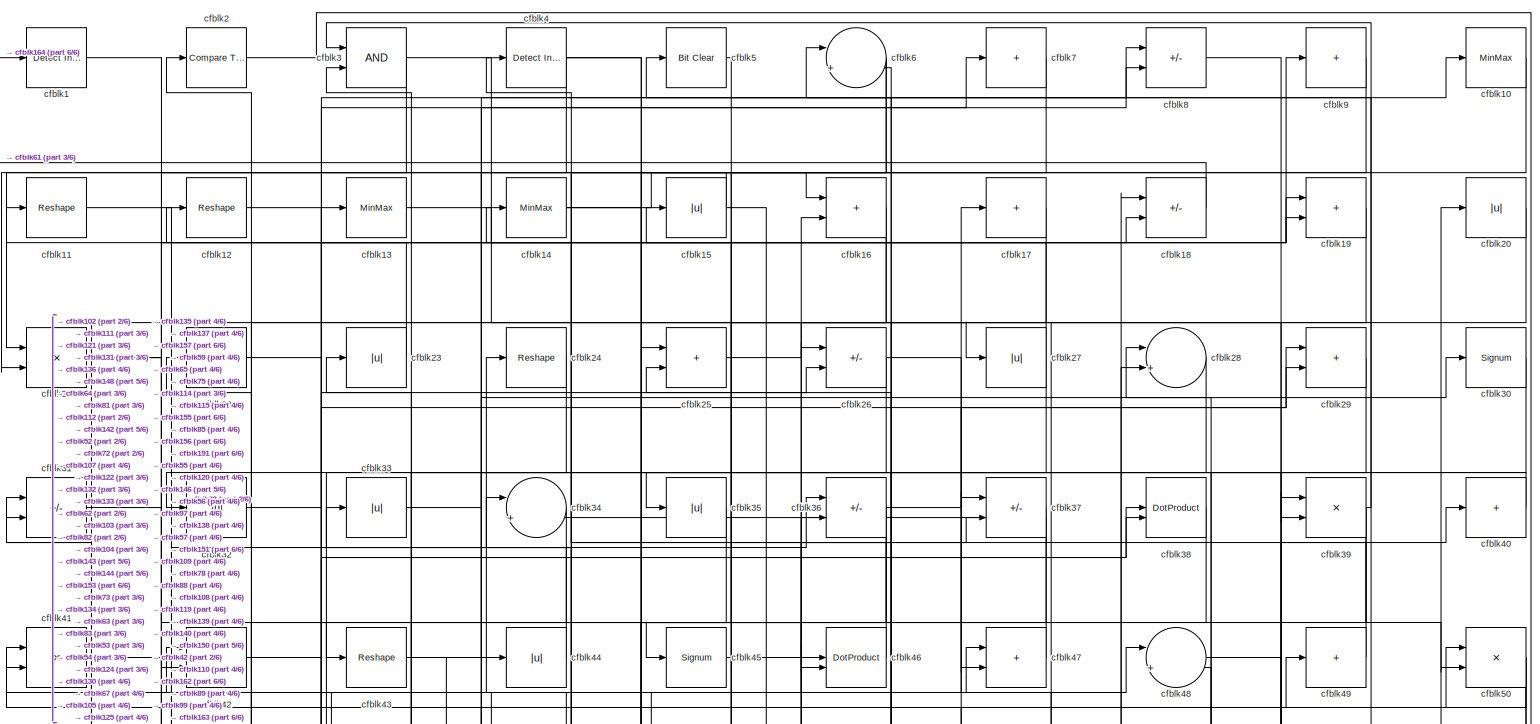
[diagram: root canvas - part 1/6, full width, top band]
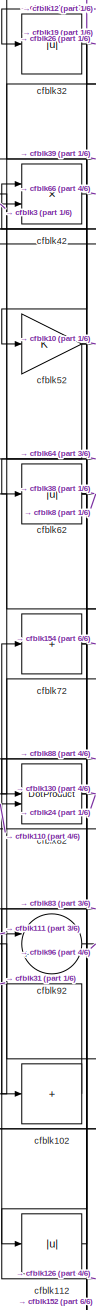
[diagram: root canvas - part 2/6, middle left region]
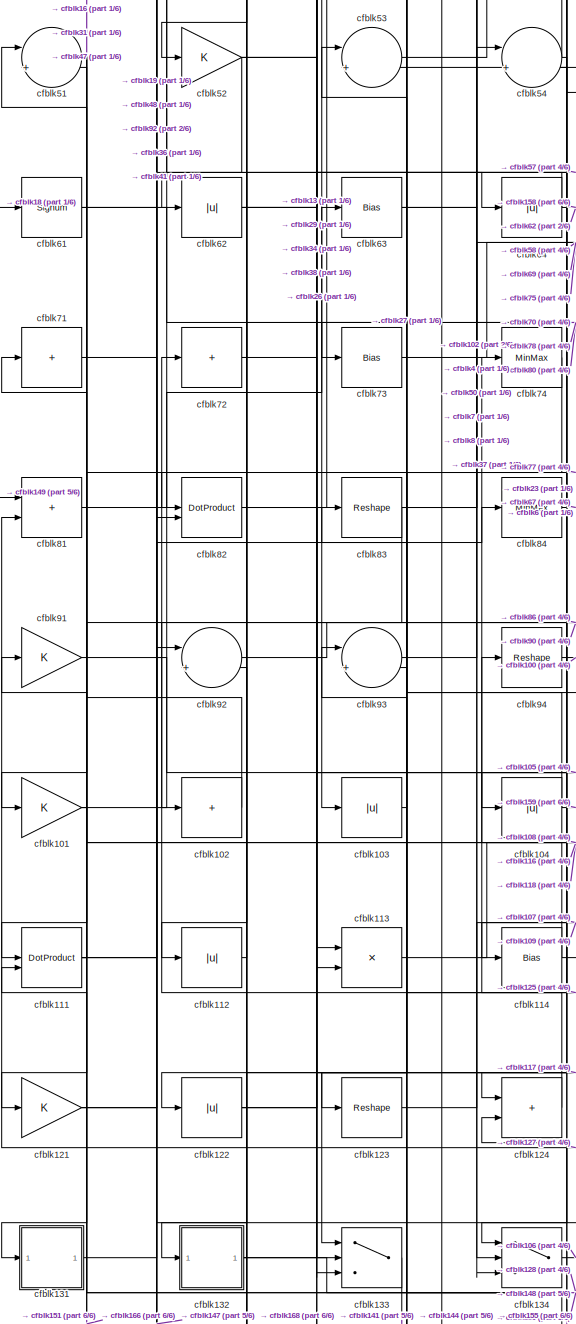
[diagram: root canvas - part 3/6, middle left region]
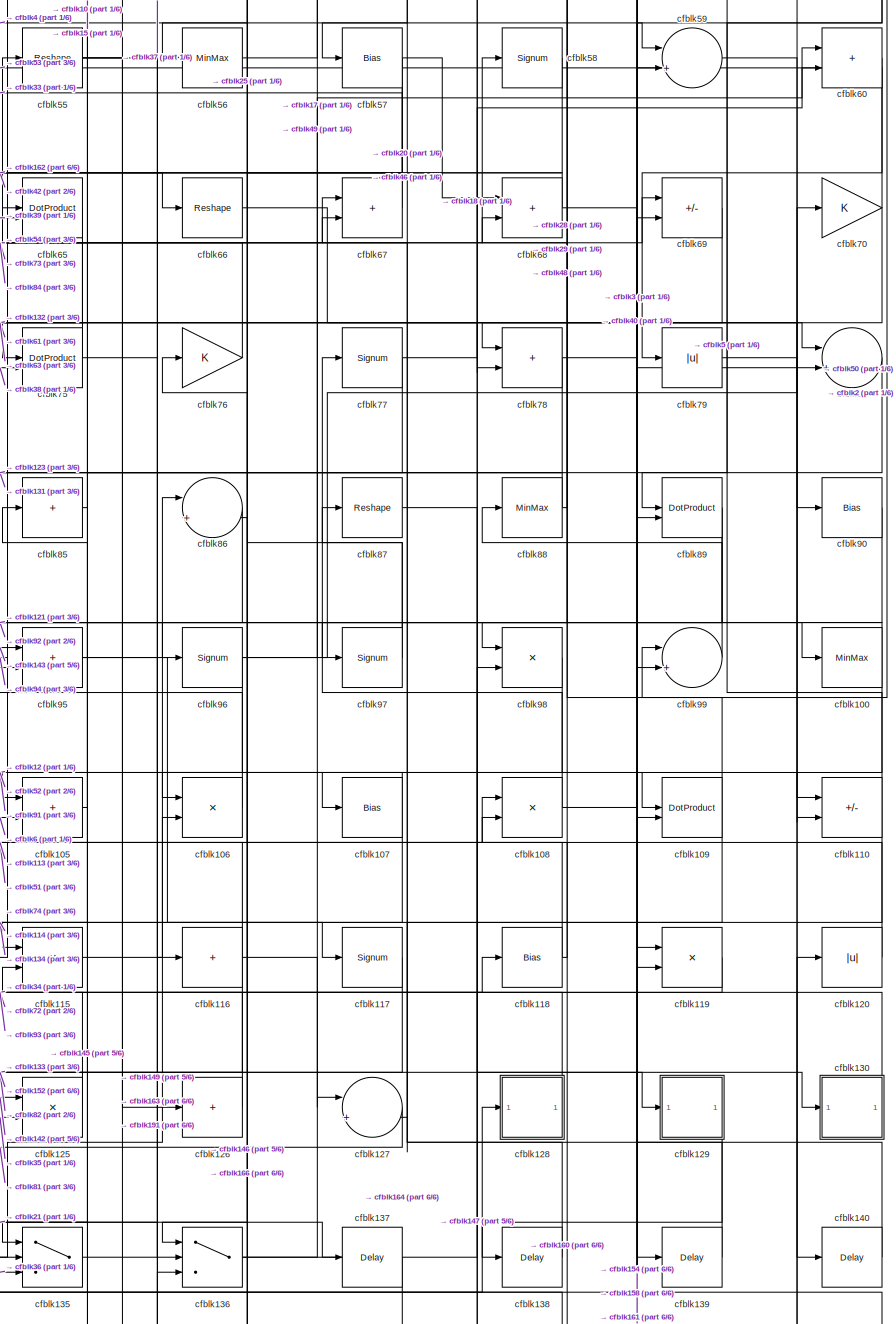
[diagram: root canvas - part 4/6, middle right region]
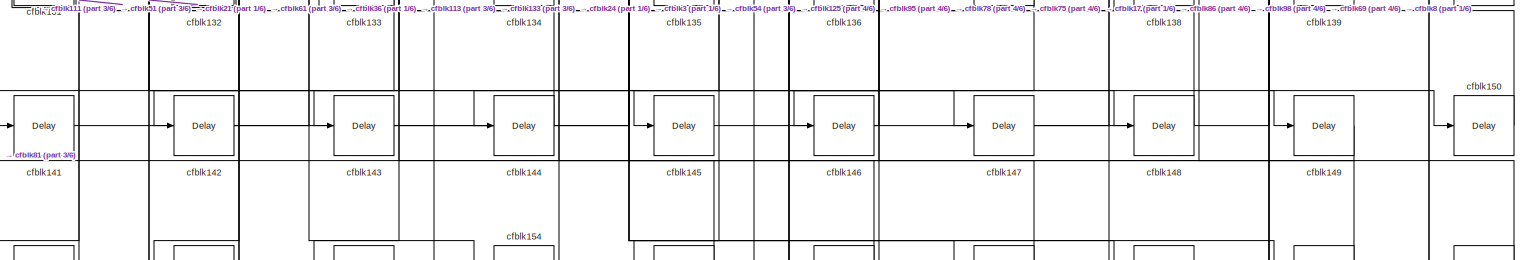
[diagram: root canvas - part 5/6, full width, bottom band]
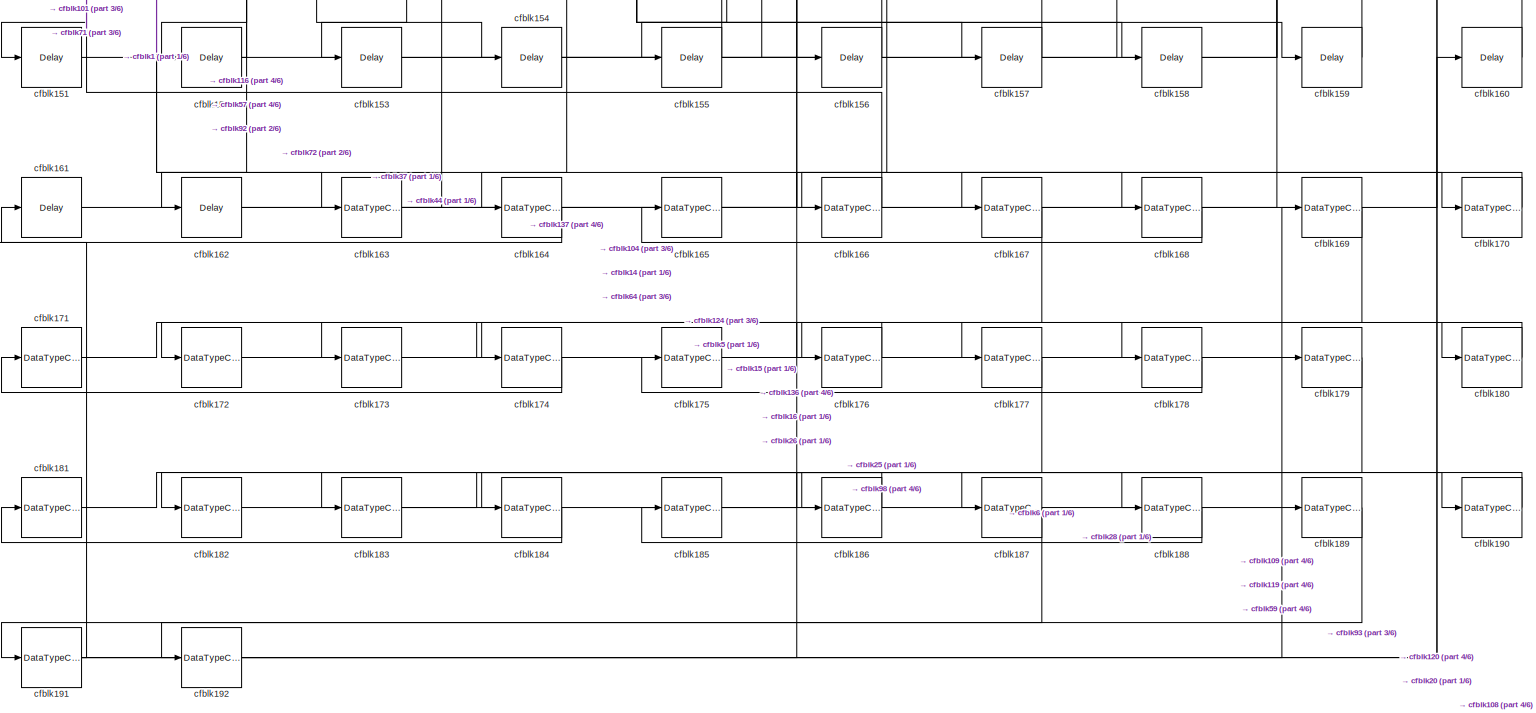
[diagram: root canvas - part 6/6, full width, bottom band]
MODEL slx_4dafe0796cf0
KIND model
CONFIG AbsTol = auto
CONFIG EnableMultiTasking = off
CONFIG FixedStep = auto
CONFIG MaxStep = auto
CONFIG MinStep = auto
CONFIG RelTol = 1e-3
CONFIG SampleTimeConstraint = Unconstrained
CONFIG SolverName = VariableStepAuto
CONFIG StartTime = 0.0
CONFIG StopTime = 10.0
BLOCK [Reference] cfblk1  REF=simulink/Logic and Bit
Operations/Detect
Increase
  LibrarySourceBlock = hdlsllib/Logic and Bit\nOperations/Detect\nIncrease
  SourceBlock = simulink/Logic and Bit\nOperations/Detect\nIncrease
  SourceType = Detect Increase
BLOCK [MinMax] cfblk10
BLOCK [MinMax] cfblk100
BLOCK [Gain] cfblk101
BLOCK [Sum] cfblk102
  IconShape = rectangular
  Inputs = +
BLOCK [Abs] cfblk103
  SaturateOnIntegerOverflow = off
BLOCK [Abs] cfblk104
  SaturateOnIntegerOverflow = off
BLOCK [Sum] cfblk105
  IconShape = rectangular
BLOCK [Product] cfblk106
  Inputs = */
  RndMeth = Zero
  SaturateOnIntegerOverflow = on
BLOCK [Bias] cfblk107
  Bias = 0.0
  SaturateOnIntegerOverflow = off
BLOCK [Product] cfblk108
  Inputs = */
  RndMeth = Zero
  SaturateOnIntegerOverflow = on
BLOCK [DotProduct] cfblk109
  OutDataTypeStr = Inherit: Inherit via internal rule
BLOCK [Reshape] cfblk11
BLOCK [Sum] cfblk110
  IconShape = rectangular
  Inputs = +-
BLOCK [DotProduct] cfblk111
  OutDataTypeStr = Inherit: Inherit via internal rule
BLOCK [Abs] cfblk112
  SaturateOnIntegerOverflow = off
BLOCK [Product] cfblk113
  Inputs = */
  RndMeth = Zero
  SaturateOnIntegerOverflow = on
BLOCK [Bias] cfblk114
  Bias = 0.0
  SaturateOnIntegerOverflow = off
BLOCK [Product] cfblk115
  Inputs = */
  RndMeth = Zero
  SaturateOnIntegerOverflow = on
BLOCK [Sum] cfblk116
  IconShape = rectangular
  Inputs = +
BLOCK [Signum] cfblk117
BLOCK [Bias] cfblk118
  Bias = 0.0
  SaturateOnIntegerOverflow = off
BLOCK [Product] cfblk119
  Inputs = */
  RndMeth = Zero
  SaturateOnIntegerOverflow = on
BLOCK [Reshape] cfblk12
BLOCK [Abs] cfblk120
  SaturateOnIntegerOverflow = off
BLOCK [Gain] cfblk121
BLOCK [Abs] cfblk122
  SaturateOnIntegerOverflow = off
BLOCK [Reshape] cfblk123
BLOCK [Sum] cfblk124
  IconShape = rectangular
BLOCK [Product] cfblk125
  Inputs = */
  RndMeth = Zero
  SaturateOnIntegerOverflow = on
BLOCK [Sum] cfblk126
  IconShape = rectangular
  Inputs = +
BLOCK [Sum] cfblk127
  Inputs = |++
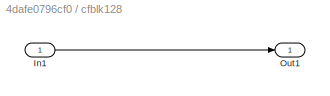
BLOCK [SubSystem] cfblk128
  LibrarySourceBlock = hdlsllib/Ports &\nSubsystems/Subsystem
BLOCK [Inport] cfblk128/In1
BLOCK [Outport] cfblk128/Out1
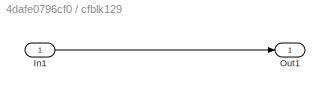
BLOCK [SubSystem] cfblk129
  LibrarySourceBlock = hdlsllib/Ports &\nSubsystems/Subsystem
BLOCK [Inport] cfblk129/In1
BLOCK [Outport] cfblk129/Out1
BLOCK [MinMax] cfblk13
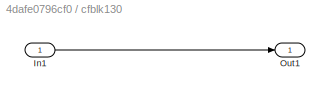
BLOCK [SubSystem] cfblk130
  LibrarySourceBlock = hdlsllib/Ports &\nSubsystems/Subsystem
BLOCK [Inport] cfblk130/In1
BLOCK [Outport] cfblk130/Out1
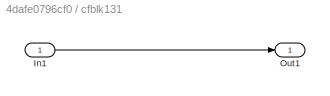
BLOCK [SubSystem] cfblk131
  LibrarySourceBlock = hdlsllib/Ports &\nSubsystems/Subsystem
BLOCK [Inport] cfblk131/In1
BLOCK [Outport] cfblk131/Out1
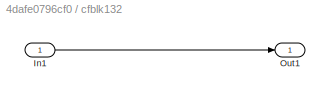
BLOCK [SubSystem] cfblk132
  LibrarySourceBlock = hdlsllib/Ports &\nSubsystems/Subsystem
BLOCK [Inport] cfblk132/In1
BLOCK [Outport] cfblk132/Out1
BLOCK [Switch] cfblk133
  InputSameDT = off
  SaturateOnIntegerOverflow = off
BLOCK [Switch] cfblk134
  InputSameDT = off
  SaturateOnIntegerOverflow = off
BLOCK [Switch] cfblk135
  InputSameDT = off
  SaturateOnIntegerOverflow = off
BLOCK [Switch] cfblk136
  InputSameDT = off
  SaturateOnIntegerOverflow = off
BLOCK [Delay] cfblk137
  InputPortMap = u0
  SampleTime = 1
BLOCK [Delay] cfblk138
  InputPortMap = u0
  SampleTime = 1
BLOCK [Delay] cfblk139
  InputPortMap = u0
  SampleTime = 1
BLOCK [MinMax] cfblk14
BLOCK [Delay] cfblk140
  InputPortMap = u0
  SampleTime = 1
BLOCK [Delay] cfblk141
  InputPortMap = u0
  SampleTime = 1
BLOCK [Delay] cfblk142
  InputPortMap = u0
  SampleTime = 1
BLOCK [Delay] cfblk143
  InputPortMap = u0
  SampleTime = 1
BLOCK [Delay] cfblk144
  InputPortMap = u0
  SampleTime = 1
BLOCK [Delay] cfblk145
  InputPortMap = u0
  SampleTime = 1
BLOCK [Delay] cfblk146
  InputPortMap = u0
  SampleTime = 1
BLOCK [Delay] cfblk147
  InputPortMap = u0
  SampleTime = 1
BLOCK [Delay] cfblk148
  InputPortMap = u0
  SampleTime = 1
BLOCK [Delay] cfblk149
  InputPortMap = u0
  SampleTime = 1
BLOCK [Abs] cfblk15
  SaturateOnIntegerOverflow = off
BLOCK [Delay] cfblk150
  InputPortMap = u0
  SampleTime = 1
BLOCK [Delay] cfblk151
  InputPortMap = u0
  SampleTime = 1
BLOCK [Delay] cfblk152
  InputPortMap = u0
  SampleTime = 1
BLOCK [Delay] cfblk153
  InputPortMap = u0
  SampleTime = 1
BLOCK [Delay] cfblk154
  InputPortMap = u0
  SampleTime = 1
BLOCK [Delay] cfblk155
  InputPortMap = u0
  SampleTime = 1
BLOCK [Delay] cfblk156
  InputPortMap = u0
  SampleTime = 1
BLOCK [Delay] cfblk157
  InputPortMap = u0
  SampleTime = 1
BLOCK [Delay] cfblk158
  InputPortMap = u0
  SampleTime = 1
BLOCK [Delay] cfblk159
  InputPortMap = u0
  SampleTime = 1
BLOCK [Sum] cfblk16
  IconShape = rectangular
BLOCK [Delay] cfblk160
  InputPortMap = u0
  SampleTime = 1
BLOCK [Delay] cfblk161
  InputPortMap = u0
  SampleTime = 1
BLOCK [Delay] cfblk162
  InputPortMap = u0
  SampleTime = 1
BLOCK [DataTypeConversion] cfblk163
  RndMeth = Floor
  SaturateOnIntegerOverflow = off
BLOCK [DataTypeConversion] cfblk164
  OutDataTypeStr = uint8
  RndMeth = Floor
  SaturateOnIntegerOverflow = off
BLOCK [DataTypeConversion] cfblk165
  RndMeth = Floor
  SaturateOnIntegerOverflow = off
BLOCK [DataTypeConversion] cfblk166
  OutDataTypeStr = uint8
  RndMeth = Floor
  SaturateOnIntegerOverflow = off
BLOCK [DataTypeConversion] cfblk167
  RndMeth = Floor
  SaturateOnIntegerOverflow = off
BLOCK [DataTypeConversion] cfblk168
  OutDataTypeStr = uint8
  RndMeth = Floor
  SaturateOnIntegerOverflow = off
BLOCK [DataTypeConversion] cfblk169
  RndMeth = Floor
  SaturateOnIntegerOverflow = off
BLOCK [Sum] cfblk17
  IconShape = rectangular
  Inputs = +
BLOCK [DataTypeConversion] cfblk170
  OutDataTypeStr = uint8
  RndMeth = Floor
  SaturateOnIntegerOverflow = off
BLOCK [DataTypeConversion] cfblk171
  RndMeth = Floor
  SaturateOnIntegerOverflow = off
BLOCK [DataTypeConversion] cfblk172
  OutDataTypeStr = uint8
  RndMeth = Floor
  SaturateOnIntegerOverflow = off
BLOCK [DataTypeConversion] cfblk173
  RndMeth = Floor
  SaturateOnIntegerOverflow = off
BLOCK [DataTypeConversion] cfblk174
  OutDataTypeStr = uint8
  RndMeth = Floor
  SaturateOnIntegerOverflow = off
BLOCK [DataTypeConversion] cfblk175
  RndMeth = Floor
  SaturateOnIntegerOverflow = off
BLOCK [DataTypeConversion] cfblk176
  OutDataTypeStr = uint8
  RndMeth = Floor
  SaturateOnIntegerOverflow = off
BLOCK [DataTypeConversion] cfblk177
  RndMeth = Floor
  SaturateOnIntegerOverflow = off
BLOCK [DataTypeConversion] cfblk178
  OutDataTypeStr = uint8
  RndMeth = Floor
  SaturateOnIntegerOverflow = off
BLOCK [DataTypeConversion] cfblk179
  RndMeth = Floor
  SaturateOnIntegerOverflow = off
BLOCK [Sum] cfblk18
  IconShape = rectangular
  Inputs = +-
BLOCK [DataTypeConversion] cfblk180
  OutDataTypeStr = uint8
  RndMeth = Floor
  SaturateOnIntegerOverflow = off
BLOCK [DataTypeConversion] cfblk181
  RndMeth = Floor
  SaturateOnIntegerOverflow = off
BLOCK [DataTypeConversion] cfblk182
  OutDataTypeStr = uint8
  RndMeth = Floor
  SaturateOnIntegerOverflow = off
BLOCK [DataTypeConversion] cfblk183
  RndMeth = Floor
  SaturateOnIntegerOverflow = off
BLOCK [DataTypeConversion] cfblk184
  OutDataTypeStr = uint8
  RndMeth = Floor
  SaturateOnIntegerOverflow = off
BLOCK [DataTypeConversion] cfblk185
  RndMeth = Floor
  SaturateOnIntegerOverflow = off
BLOCK [DataTypeConversion] cfblk186
  OutDataTypeStr = uint8
  RndMeth = Floor
  SaturateOnIntegerOverflow = off
BLOCK [DataTypeConversion] cfblk187
  RndMeth = Floor
  SaturateOnIntegerOverflow = off
BLOCK [DataTypeConversion] cfblk188
  OutDataTypeStr = uint8
  RndMeth = Floor
  SaturateOnIntegerOverflow = off
BLOCK [DataTypeConversion] cfblk189
  RndMeth = Floor
  SaturateOnIntegerOverflow = off
BLOCK [Sum] cfblk19
  IconShape = rectangular
BLOCK [DataTypeConversion] cfblk190
  OutDataTypeStr = uint8
  RndMeth = Floor
  SaturateOnIntegerOverflow = off
BLOCK [DataTypeConversion] cfblk191
  RndMeth = Floor
  SaturateOnIntegerOverflow = off
BLOCK [DataTypeConversion] cfblk192
  OutDataTypeStr = uint8
  RndMeth = Floor
  SaturateOnIntegerOverflow = off
BLOCK [Reference] cfblk2  REF=hdlsllib/Logic and Bit
Operations/Compare
To Constant
  SourceBlock = hdlsllib/Logic and Bit\nOperations/Compare\nTo Constant
  SourceType = Compare To Constant
BLOCK [Abs] cfblk20
  SaturateOnIntegerOverflow = off
BLOCK [Product] cfblk21
  Inputs = */
  RndMeth = Zero
  SaturateOnIntegerOverflow = on
BLOCK [Sum] cfblk22
  IconShape = rectangular
  Inputs = +
BLOCK [Abs] cfblk23
  SaturateOnIntegerOverflow = off
BLOCK [Reshape] cfblk24
BLOCK [Sum] cfblk25
  IconShape = rectangular
BLOCK [Sum] cfblk26
  IconShape = rectangular
  Inputs = +-
BLOCK [Abs] cfblk27
  SaturateOnIntegerOverflow = off
BLOCK [Sum] cfblk28
  Inputs = |++
BLOCK [Sum] cfblk29
  IconShape = rectangular
BLOCK [Logic] cfblk3
  AllPortsSameDT = off
  OutDataTypeStr = boolean
BLOCK [Signum] cfblk30
BLOCK [Sum] cfblk31
  IconShape = rectangular
  Inputs = +-
BLOCK [Abs] cfblk32
  SaturateOnIntegerOverflow = off
BLOCK [Abs] cfblk33
  SaturateOnIntegerOverflow = off
BLOCK [Sum] cfblk34
  Inputs = |++
BLOCK [Abs] cfblk35
  SaturateOnIntegerOverflow = off
BLOCK [Sum] cfblk36
  IconShape = rectangular
  Inputs = +-
BLOCK [Sum] cfblk37
  IconShape = rectangular
  Inputs = +-
BLOCK [DotProduct] cfblk38
  OutDataTypeStr = Inherit: Inherit via internal rule
BLOCK [Product] cfblk39
  Inputs = */
  RndMeth = Zero
  SaturateOnIntegerOverflow = on
BLOCK [Reference] cfblk4  REF=simulink/Logic and Bit
Operations/Detect
Increase
  LibrarySourceBlock = hdlsllib/Logic and Bit\nOperations/Detect\nIncrease
  SourceBlock = simulink/Logic and Bit\nOperations/Detect\nIncrease
  SourceType = Detect Increase
BLOCK [Sum] cfblk40
  IconShape = rectangular
  Inputs = +
BLOCK [Product] cfblk41
  Inputs = */
  RndMeth = Zero
  SaturateOnIntegerOverflow = on
BLOCK [Product] cfblk42
  Inputs = */
  RndMeth = Zero
  SaturateOnIntegerOverflow = on
BLOCK [Reshape] cfblk43
BLOCK [Abs] cfblk44
  SaturateOnIntegerOverflow = off
BLOCK [Signum] cfblk45
BLOCK [DotProduct] cfblk46
  OutDataTypeStr = Inherit: Inherit via internal rule
BLOCK [Sum] cfblk47
  IconShape = rectangular
BLOCK [Sum] cfblk48
  Inputs = |++
BLOCK [Sum] cfblk49
  IconShape = rectangular
  Inputs = +
BLOCK [Reference] cfblk5  REF=simulink/Logic and Bit
Operations/Bit Clear
  LibrarySourceBlock = hdlsllib/Logic and Bit\nOperations/Bit Clear
  SourceBlock = simulink/Logic and Bit\nOperations/Bit Clear
  SourceType = Bit Clear
BLOCK [Product] cfblk50
  Inputs = */
  RndMeth = Zero
  SaturateOnIntegerOverflow = on
BLOCK [Sum] cfblk51
  Inputs = |++
BLOCK [Gain] cfblk52
BLOCK [Sum] cfblk53
  Inputs = |++
BLOCK [Sum] cfblk54
  Inputs = |++
BLOCK [Reshape] cfblk55
BLOCK [MinMax] cfblk56
BLOCK [Bias] cfblk57
  Bias = 0.0
  SaturateOnIntegerOverflow = off
BLOCK [Signum] cfblk58
BLOCK [Sum] cfblk59
  Inputs = |++
BLOCK [Sum] cfblk6
  Inputs = |++
BLOCK [Sum] cfblk60
  IconShape = rectangular
BLOCK [Signum] cfblk61
BLOCK [Abs] cfblk62
  SaturateOnIntegerOverflow = off
BLOCK [Bias] cfblk63
  Bias = 0.0
  SaturateOnIntegerOverflow = off
BLOCK [Abs] cfblk64
  SaturateOnIntegerOverflow = off
BLOCK [DotProduct] cfblk65
  OutDataTypeStr = Inherit: Inherit via internal rule
BLOCK [Reshape] cfblk66
BLOCK [Sum] cfblk67
  IconShape = rectangular
BLOCK [Sum] cfblk68
  IconShape = rectangular
BLOCK [Sum] cfblk69
  IconShape = rectangular
  Inputs = +-
BLOCK [Sum] cfblk7
  IconShape = rectangular
  Inputs = +
BLOCK [Gain] cfblk70
BLOCK [Sum] cfblk71
  IconShape = rectangular
  Inputs = +
BLOCK [Sum] cfblk72
  IconShape = rectangular
  Inputs = +
BLOCK [Bias] cfblk73
  Bias = 0.0
  SaturateOnIntegerOverflow = off
BLOCK [MinMax] cfblk74
BLOCK [DotProduct] cfblk75
  OutDataTypeStr = Inherit: Inherit via internal rule
BLOCK [Gain] cfblk76
BLOCK [Signum] cfblk77
BLOCK [Sum] cfblk78
  IconShape = rectangular
BLOCK [Abs] cfblk79
  SaturateOnIntegerOverflow = off
BLOCK [Sum] cfblk8
  IconShape = rectangular
  Inputs = +-
BLOCK [Sum] cfblk80
  Inputs = |++
BLOCK [Sum] cfblk81
  IconShape = rectangular
BLOCK [DotProduct] cfblk82
  OutDataTypeStr = Inherit: Inherit via internal rule
BLOCK [Reshape] cfblk83
BLOCK [MinMax] cfblk84
BLOCK [Sum] cfblk85
  IconShape = rectangular
  Inputs = +
BLOCK [Sum] cfblk86
  Inputs = |++
BLOCK [Reshape] cfblk87
BLOCK [MinMax] cfblk88
BLOCK [DotProduct] cfblk89
  OutDataTypeStr = Inherit: Inherit via internal rule
BLOCK [Sum] cfblk9
  IconShape = rectangular
  Inputs = +
BLOCK [Bias] cfblk90
  Bias = 0.0
  SaturateOnIntegerOverflow = off
BLOCK [Gain] cfblk91
BLOCK [Sum] cfblk92
  Inputs = |++
BLOCK [Sum] cfblk93
  Inputs = |++
BLOCK [Reshape] cfblk94
BLOCK [Sum] cfblk95
  IconShape = rectangular
BLOCK [Signum] cfblk96
BLOCK [Signum] cfblk97
BLOCK [Product] cfblk98
  Inputs = */
  RndMeth = Zero
  SaturateOnIntegerOverflow = on
BLOCK [Sum] cfblk99
  Inputs = |++
NET cfblk100:1 -> cfblk134:1, cfblk97:1
NET cfblk101:1 -> cfblk151:1, cfblk63:1
LINE cfblk102:1 -> cfblk31:1
LINE cfblk103:1 -> cfblk83:1
NET cfblk104:1 -> cfblk159:1, cfblk41:1
LINE cfblk105:1 -> cfblk85:1
LINE cfblk106:1 -> cfblk53:1
NET cfblk107:1 -> cfblk106:1, cfblk134:3
NET cfblk108:1 -> cfblk40:1, cfblk87:1
NET cfblk109:1 -> cfblk114:1, cfblk28:1
LINE cfblk10:1 -> cfblk115:1
NET cfblk110:1 -> cfblk127:2, cfblk5:1
NET cfblk111:1 -> cfblk19:2, cfblk91:1, cfblk92:1
LINE cfblk112:1 -> cfblk42:1
LINE cfblk113:1 -> cfblk108:1
NET cfblk114:1 -> cfblk31:2, cfblk47:1
LINE cfblk115:1 -> cfblk86:1
NET cfblk116:1 -> cfblk127:1, cfblk152:1, cfblk51:2
LINE cfblk117:1 -> cfblk133:1
NET cfblk118:1 -> cfblk68:2, cfblk74:1
LINE cfblk119:1 -> cfblk115:2
LINE cfblk11:1 -> cfblk43:1
LINE cfblk120:1 -> cfblk6:1
NET cfblk121:1 -> cfblk18:2, cfblk84:1
NET cfblk122:1 -> cfblk13:1, cfblk38:2
LINE cfblk123:1 -> cfblk54:1
LINE cfblk124:1 -> cfblk94:1
LINE cfblk125:1 -> cfblk93:1
LINE cfblk126:1 -> cfblk72:1
LINE cfblk127:1 -> cfblk81:2
LINE cfblk128/In1:1 -> cfblk128/Out1:1
LINE cfblk128:1 -> cfblk76:1
LINE cfblk129/In1:1 -> cfblk129/Out1:1
LINE cfblk129:1 -> cfblk138:1
LINE cfblk12:1 -> cfblk107:1
LINE cfblk130/In1:1 -> cfblk130/Out1:1
LINE cfblk130:1 -> cfblk34:1
LINE cfblk131/In1:1 -> cfblk131/Out1:1
LINE cfblk131:1 -> cfblk48:1
LINE cfblk132/In1:1 -> cfblk132/Out1:1
NET cfblk132:1 -> cfblk128:1, cfblk29:2
LINE cfblk133:1 -> cfblk141:1
LINE cfblk134:1 -> cfblk106:2
LINE cfblk135:1 -> cfblk118:1
NET cfblk136:1 -> cfblk17:1, cfblk18:1
LINE cfblk137:1 -> cfblk164:1
LINE cfblk138:1 -> cfblk46:1
LINE cfblk139:1 -> cfblk67:2
LINE cfblk13:1 -> cfblk9:1
LINE cfblk140:1 -> cfblk39:1
LINE cfblk141:1 -> cfblk113:1
LINE cfblk142:1 -> cfblk125:1
LINE cfblk143:1 -> cfblk95:1
LINE cfblk144:1 -> cfblk3:2
LINE cfblk145:1 -> cfblk69:2
LINE cfblk146:1 -> cfblk86:2
LINE cfblk147:1 -> cfblk98:2
LINE cfblk148:1 -> cfblk111:2
LINE cfblk149:1 -> cfblk81:1
NET cfblk14:1 -> cfblk157:1, cfblk16:1
LINE cfblk150:1 -> cfblk51:1
LINE cfblk151:1 -> cfblk28:2
LINE cfblk152:1 -> cfblk92:2
LINE cfblk153:1 -> cfblk26:1
LINE cfblk154:1 -> cfblk109:2
LINE cfblk155:1 -> cfblk124:2
LINE cfblk156:1 -> cfblk25:1
LINE cfblk157:1 -> cfblk6:2
LINE cfblk158:1 -> cfblk59:2
LINE cfblk159:1 -> cfblk93:2
NET cfblk15:1 -> cfblk156:1, cfblk21:1
LINE cfblk160:1 -> cfblk108:2
LINE cfblk161:1 -> cfblk119:2
LINE cfblk162:1 -> cfblk20:1
NET cfblk163:1 -> cfblk136:3, cfblk44:1
LINE cfblk164:1 -> cfblk1:1
LINE cfblk165:1 -> cfblk170:1
LINE cfblk166:1 -> cfblk71:1
LINE cfblk167:1 -> cfblk172:1
LINE cfblk168:1 -> cfblk165:1
LINE cfblk169:1 -> cfblk174:1
NET cfblk16:1 -> cfblk111:1, cfblk45:1
LINE cfblk170:1 -> cfblk167:1
LINE cfblk171:1 -> cfblk176:1
LINE cfblk172:1 -> cfblk169:1
LINE cfblk173:1 -> cfblk178:1
LINE cfblk174:1 -> cfblk171:1
LINE cfblk175:1 -> cfblk180:1
LINE cfblk176:1 -> cfblk173:1
LINE cfblk177:1 -> cfblk182:1
LINE cfblk178:1 -> cfblk175:1
LINE cfblk179:1 -> cfblk184:1
LINE cfblk17:1 -> cfblk146:1
LINE cfblk180:1 -> cfblk177:1
LINE cfblk181:1 -> cfblk186:1
LINE cfblk182:1 -> cfblk179:1
LINE cfblk183:1 -> cfblk188:1
LINE cfblk184:1 -> cfblk181:1
LINE cfblk185:1 -> cfblk190:1
LINE cfblk186:1 -> cfblk183:1
LINE cfblk187:1 -> cfblk192:1
LINE cfblk188:1 -> cfblk185:1
LINE cfblk189:1 -> cfblk191:1
LINE cfblk18:1 -> cfblk61:1
LINE cfblk190:1 -> cfblk187:1
NET cfblk191:1 -> cfblk120:1, cfblk160:1, cfblk161:1, cfblk16:2
LINE cfblk192:1 -> cfblk189:1
LINE cfblk19:1 -> cfblk112:1
LINE cfblk1:1 -> cfblk163:1
LINE cfblk20:1 -> cfblk57:1
NET cfblk21:1 -> cfblk136:2, cfblk148:1
LINE cfblk22:1 -> cfblk46:2
LINE cfblk23:1 -> cfblk2:1
LINE cfblk24:1 -> cfblk143:1
LINE cfblk25:1 -> cfblk27:1
NET cfblk26:1 -> cfblk103:1, cfblk50:2
NET cfblk27:1 -> cfblk11:1, cfblk73:1
LINE cfblk28:1 -> cfblk56:1
LINE cfblk29:1 -> cfblk78:1
LINE cfblk2:1 -> cfblk99:1
LINE cfblk30:1 -> cfblk32:1
LINE cfblk31:1 -> cfblk47:2
LINE cfblk32:1 -> cfblk26:2
LINE cfblk33:1 -> cfblk39:2
LINE cfblk34:1 -> cfblk133:2
LINE cfblk35:1 -> cfblk125:2
NET cfblk36:1 -> cfblk135:3, cfblk142:1, cfblk29:1
LINE cfblk37:1 -> cfblk153:1
LINE cfblk38:1 -> cfblk75:2
NET cfblk39:1 -> cfblk3:1, cfblk52:1, cfblk65:2
NET cfblk3:1 -> cfblk119:1, cfblk42:2
LINE cfblk40:1 -> cfblk35:1
LINE cfblk41:1 -> cfblk64:1
LINE cfblk42:1 -> cfblk66:1
LINE cfblk43:1 -> cfblk30:1
LINE cfblk44:1 -> cfblk22:1
LINE cfblk45:1 -> cfblk36:2
LINE cfblk46:1 -> cfblk4:1
LINE cfblk47:1 -> cfblk34:2
LINE cfblk48:1 -> cfblk139:1
LINE cfblk49:1 -> cfblk14:1
NET cfblk4:1 -> cfblk134:2, cfblk137:1, cfblk59:1
NET cfblk50:1 -> cfblk41:2, cfblk89:1, cfblk89:2
LINE cfblk51:1 -> cfblk101:1
NET cfblk52:1 -> cfblk10:1, cfblk110:2, cfblk82:2
LINE cfblk53:1 -> cfblk37:1
NET cfblk54:1 -> cfblk144:1, cfblk23:1
NET cfblk55:1 -> cfblk116:1, cfblk126:1, cfblk37:2
LINE cfblk56:1 -> cfblk49:1
NET cfblk57:1 -> cfblk133:3, cfblk162:1, cfblk68:1
LINE cfblk58:1 -> cfblk136:1
LINE cfblk59:1 -> cfblk90:1
LINE cfblk5:1 -> cfblk155:1
LINE cfblk60:1 -> cfblk79:1
NET cfblk61:1 -> cfblk147:1, cfblk80:1
NET cfblk62:1 -> cfblk19:1, cfblk38:1, cfblk8:2
NET cfblk63:1 -> cfblk78:2, cfblk8:1
NET cfblk64:1 -> cfblk158:1, cfblk62:1
LINE cfblk65:1 -> cfblk75:1
LINE cfblk66:1 -> cfblk110:1
LINE cfblk67:1 -> cfblk33:1
NET cfblk68:1 -> cfblk65:1, cfblk99:2
LINE cfblk69:1 -> cfblk98:1
NET cfblk6:1 -> cfblk105:2, cfblk124:1
NET cfblk70:1 -> cfblk132:1, cfblk53:2
LINE cfblk71:1 -> cfblk168:1
NET cfblk72:1 -> cfblk12:1, cfblk154:1
LINE cfblk73:1 -> cfblk58:1
LINE cfblk74:1 -> cfblk122:1
NET cfblk75:1 -> cfblk149:1, cfblk54:2
LINE cfblk76:1 -> cfblk55:1
NET cfblk77:1 -> cfblk131:1, cfblk60:2
NET cfblk78:1 -> cfblk145:1, cfblk80:2
LINE cfblk79:1 -> cfblk140:1
LINE cfblk7:1 -> cfblk104:1
LINE cfblk80:1 -> cfblk123:1
LINE cfblk81:1 -> cfblk36:1
NET cfblk82:1 -> cfblk130:1, cfblk24:1
NET cfblk83:1 -> cfblk102:1, cfblk50:1, cfblk7:1
LINE cfblk84:1 -> cfblk67:1
LINE cfblk85:1 -> cfblk15:1
LINE cfblk86:1 -> cfblk113:2
LINE cfblk87:1 -> cfblk129:1
NET cfblk88:1 -> cfblk48:2, cfblk82:1
NET cfblk89:1 -> cfblk135:1, cfblk95:2
LINE cfblk8:1 -> cfblk150:1
LINE cfblk90:1 -> cfblk121:1
LINE cfblk91:1 -> cfblk105:1
LINE cfblk92:1 -> cfblk96:1
LINE cfblk93:1 -> cfblk69:1
LINE cfblk94:1 -> cfblk100:1
NET cfblk95:1 -> cfblk109:1, cfblk117:1
NET cfblk96:1 -> cfblk135:2, cfblk60:1, cfblk70:1
NET cfblk97:1 -> cfblk25:2, cfblk77:1
LINE cfblk98:1 -> cfblk166:1
LINE cfblk99:1 -> cfblk88:1
LINE cfblk9:1 -> cfblk21:2
note: NET lines group one-source signal fan-out (src -> all destinations, sorted); 1:1 wires keep LINE
